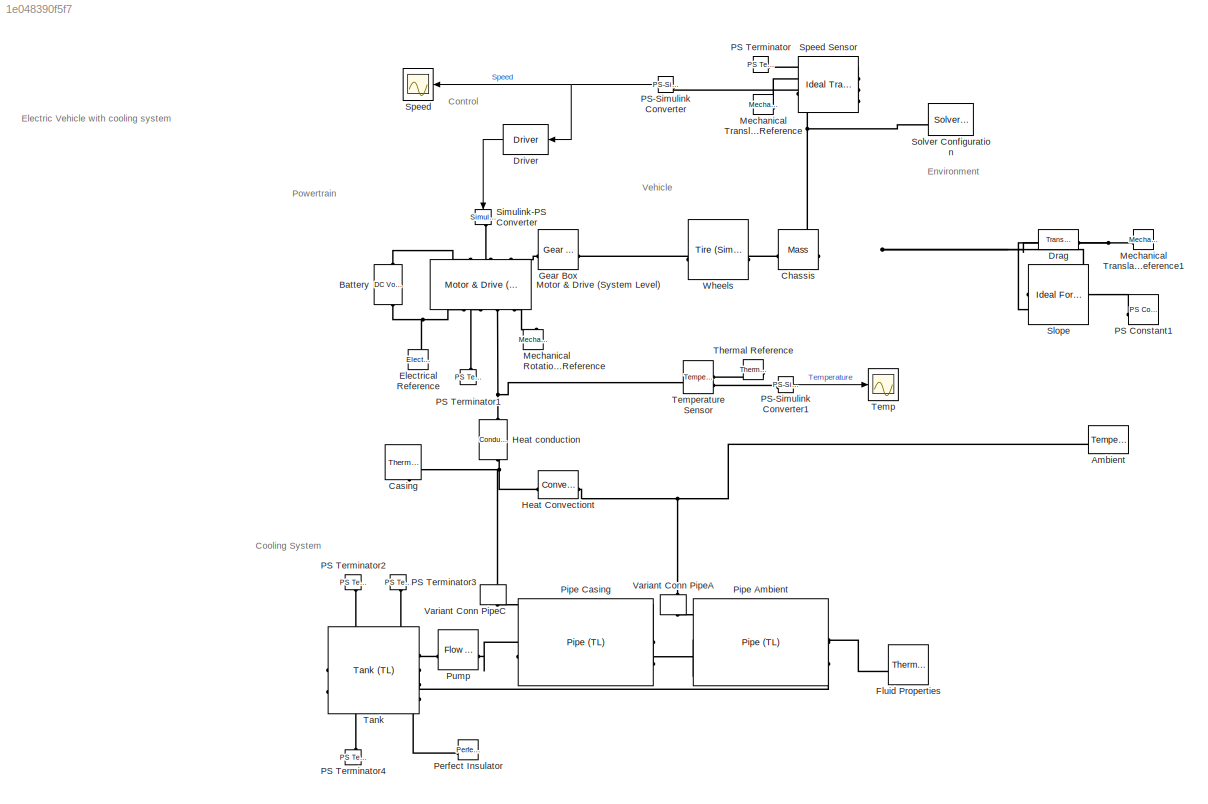
MODEL slx_1e048390f5f7
KIND model
CONFIG AbsTol = 1e-3
CONFIG EnableMultiTasking = off
CONFIG FixedStep = auto
CONFIG MaxStep = auto
CONFIG MinStep = auto
CONFIG RelTol = 1e-3
CONFIG SampleTimeConstraint = Unconstrained
CONFIG SolverName = VariableStepAuto
CONFIG StartTime = 0.0
CONFIG StopTime = 720
BLOCK [Reference] Ambient   REF=fl_lib/Thermal/Thermal Sources/Temperature Source
  NameLocation = top
  SourceBlock = fl_lib/Thermal/Thermal Sources/Temperature Source
  SourceType = Temperature Source
BLOCK [Reference] Battery  REF=fl_lib/Electrical/Electrical Sources/DC Voltage Source
  NameLocation = left
  SourceBlock = fl_lib/Electrical/Electrical Sources/DC Voltage Source
  SourceType = DC Voltage Source
BLOCK [Reference] Casing  REF=fl_lib/Thermal/Thermal Elements/Thermal Mass
  NameLocation = left
  SourceBlock = fl_lib/Thermal/Thermal Elements/Thermal Mass
  SourceType = Thermal Mass
BLOCK [Reference] Chassis  REF=fl_lib/Mechanical/Translational
Elements/Mass
  SourceBlock = fl_lib/Mechanical/Translational\nElements/Mass
  SourceType = Mass
BLOCK [Reference] Drag  REF=fl_lib/Mechanical/Translational
Elements/Translational
Friction
  SourceBlock = fl_lib/Mechanical/Translational\nElements/Translational\nFriction
  SourceType = Translational\nFriction
BLOCK [Reference] Driver  REF=driver_maneuver_library/Driver
  SourceBlock = driver_maneuver_library/Driver
  SourceType = Human Driver Model
BLOCK [Reference] Electrical Reference  REF=fl_lib/Electrical/Electrical Elements/Electrical Reference
  NameLocation = right
  SourceBlock = fl_lib/Electrical/Electrical Elements/Electrical Reference
  SourceType = Electrical Reference
BLOCK [Reference] Fluid Properties  REF=SimscapeFluids_lib/Thermal Liquid/Utilities/Thermal Liquid
Properties (TL)
  SourceBlock = SimscapeFluids_lib/Thermal Liquid/Utilities/Thermal Liquid\nProperties (TL)
  SourceType = Thermal Liquid\nProperties (TL)
BLOCK [Reference] Gear Box  REF=fl_lib/Mechanical/Mechanisms/Gear Box
  SourceBlock = fl_lib/Mechanical/Mechanisms/Gear Box
  SourceType = Gear Box
BLOCK [Reference] Heat Convectiont   REF=fl_lib/Thermal/Thermal Elements/Convective Heat
Transfer
  SourceBlock = fl_lib/Thermal/Thermal Elements/Convective Heat\nTransfer
  SourceType = Convective Heat\nTransfer
BLOCK [Reference] Heat conduction  REF=fl_lib/Thermal/Thermal Elements/Conductive Heat
Transfer
  NameLocation = left
  SourceBlock = fl_lib/Thermal/Thermal Elements/Conductive Heat\nTransfer
  SourceType = Conductive Heat\nTransfer
BLOCK [Reference] Mechanical Rotational Reference  REF=fl_lib/Mechanical/Rotational Elements/Mechanical
Rotational Reference
  NameLocation = right
  SourceBlock = fl_lib/Mechanical/Rotational Elements/Mechanical\nRotational Reference
  SourceType = Mechanical\nRotational Reference
BLOCK [Reference] Mechanical Translational Reference  REF=fl_lib/Mechanical/Translational
Elements/Mechanical
Translational
Reference
  SourceBlock = fl_lib/Mechanical/Translational\nElements/Mechanical\nTranslational\nReference
  SourceType = Mechanical\nTranslational\nReference
BLOCK [Reference] Mechanical Translational Reference1  REF=fl_lib/Mechanical/Translational
Elements/Mechanical
Translational
Reference
  SourceBlock = fl_lib/Mechanical/Translational\nElements/Mechanical\nTranslational\nReference
  SourceType = Mechanical\nTranslational\nReference
BLOCK [Reference] Motor & Drive (System Level)  REF=ee_lib/Electromechanical/Motor & Drive
(System Level)
  NameLocation = right
  SourceBlock = ee_lib/Electromechanical/Motor & Drive\n(System Level)
  SourceType = Motor & Drive\n(System Level)
BLOCK [Reference] PS Constant1  REF=fl_lib/Physical Signals/Sources/PS Constant
  SourceBlock = fl_lib/Physical Signals/Sources/PS Constant
  SourceType = PS Constant
BLOCK [Reference] PS Terminator  REF=fl_lib/Physical Signals/Sinks/PS Terminator
  SourceBlock = fl_lib/Physical Signals/Sinks/PS Terminator
  SourceType = PS Terminator
BLOCK [Reference] PS Terminator1  REF=fl_lib/Physical Signals/Sinks/PS Terminator
  NameLocation = right
  SourceBlock = fl_lib/Physical Signals/Sinks/PS Terminator
  SourceType = PS Terminator
BLOCK [Reference] PS Terminator2  REF=fl_lib/Physical Signals/Sinks/PS Terminator
  NameLocation = left
  SourceBlock = fl_lib/Physical Signals/Sinks/PS Terminator
  SourceType = PS Terminator
BLOCK [Reference] PS Terminator3  REF=fl_lib/Physical Signals/Sinks/PS Terminator
  NameLocation = left
  SourceBlock = fl_lib/Physical Signals/Sinks/PS Terminator
  SourceType = PS Terminator
BLOCK [Reference] PS Terminator4  REF=fl_lib/Physical Signals/Sinks/PS Terminator
  NameLocation = right
  SourceBlock = fl_lib/Physical Signals/Sinks/PS Terminator
  SourceType = PS Terminator
BLOCK [Reference] PS-Simulink Converter  REF=nesl_utility/PS-Simulink
Converter
  SourceBlock = nesl_utility/PS-Simulink\nConverter
  SourceType = PS-Simulink\nConverter
BLOCK [Reference] PS-Simulink Converter1  REF=nesl_utility/PS-Simulink
Converter
  SourceBlock = nesl_utility/PS-Simulink\nConverter
  SourceType = PS-Simulink\nConverter
BLOCK [Reference] Perfect Insulator  REF=fl_lib/Thermal/Thermal Elements/Perfect Insulator
  SourceBlock = fl_lib/Thermal/Thermal Elements/Perfect Insulator
  SourceType = Perfect Insulator
BLOCK [Reference] Pipe Ambient  REF=SimscapeFluids_lib/Thermal Liquid/Pipes & Fittings/Pipe (TL)
  SourceBlock = SimscapeFluids_lib/Thermal Liquid/Pipes & Fittings/Pipe (TL)
  SourceType = Pipe (TL)
BLOCK [Reference] Pipe Casing  REF=SimscapeFluids_lib/Thermal Liquid/Pipes & Fittings/Pipe (TL)
  SourceBlock = SimscapeFluids_lib/Thermal Liquid/Pipes & Fittings/Pipe (TL)
  SourceType = Pipe (TL)
BLOCK [Reference] Pump  REF=fl_lib/Thermal Liquid/Sources/Flow Rate Source
(TL)
  SourceBlock = fl_lib/Thermal Liquid/Sources/Flow Rate Source\n(TL)
  SourceType = Flow Rate Source\n(TL)
BLOCK [Reference] Simulink-PS Converter  REF=nesl_utility/Simulink-PS
Converter
  NameLocation = left
  SourceBlock = nesl_utility/Simulink-PS\nConverter
  SourceType = Simulink-PS\nConverter
BLOCK [Reference] Slope  REF=fl_lib/Mechanical/Mechanical Sources/Ideal Force Source
  SourceBlock = fl_lib/Mechanical/Mechanical Sources/Ideal Force Source
  SourceType = Ideal Force Source
BLOCK [Reference] Solver Configuration  REF=nesl_utility/Solver
Configuration
  SourceBlock = nesl_utility/Solver\nConfiguration
  SourceType = Solver\nConfiguration
BLOCK [Scope] Speed
  Floating = off
  NumInputPorts = 1
  ScopeSpecificationString = Simulink.scopes.TimeScopeBlockCfg('CurrentConfiguration', extmgr.ConfigurationSet(extmgr.Configuration('Core','General UI',true),extmgr.Configuration('Core','Source UI',true),extmgr.Configuration('Sources','WiredSimulink',true),extmgr.Configuration('Visuals','Time Domain',true,'SerializedDisplays',{struct('MinYLimReal','-18.48627','MaxYLimReal','166.35853','YLabelReal','','MinYLimMag','0.00000','M...<+1488ch>
BLOCK [Reference] Speed Sensor  REF=fl_lib/Mechanical/Mechanical Sensors/Ideal Translational
Motion Sensor
  SourceBlock = fl_lib/Mechanical/Mechanical Sensors/Ideal Translational\nMotion Sensor
  SourceType = Ideal Translational\nMotion Sensor
BLOCK [Reference] Tank  REF=SimscapeFluids_lib/Thermal Liquid/Tanks & Accumulators/Tank (TL)
  NameLocation = left
  SourceBlock = SimscapeFluids_lib/Thermal Liquid/Tanks & Accumulators/Tank (TL)
  SourceType = Tank (TL)
BLOCK [Scope] Temp
  Floating = off
  NumInputPorts = 1
  ScopeSpecificationString = Simulink.scopes.TimeScopeBlockCfg('CurrentConfiguration', extmgr.ConfigurationSet(extmgr.Configuration('Core','General UI',true),extmgr.Configuration('Core','Source UI',true),extmgr.Configuration('Sources','WiredSimulink',true,'DataLoggingVariableName','ScopeData1'),extmgr.Configuration('Visuals','Time Domain',true,'SerializedDisplays',{struct('MinYLimReal','32.33148','MaxYLimReal','189.97694','YL...<+1556ch>
BLOCK [Reference] Temperature Sensor  REF=fl_lib/Thermal/Thermal Sensors/Temperature Sensor
  SourceBlock = fl_lib/Thermal/Thermal Sensors/Temperature Sensor
  SourceType = Temperature Sensor
BLOCK [Reference] Thermal Reference  REF=fl_lib/Thermal/Thermal Elements/Thermal Reference
  NameLocation = top
  SourceBlock = fl_lib/Thermal/Thermal Elements/Thermal Reference
  SourceType = Thermal Reference
BLOCK [VariantPMConnector] Variant Conn PipeA
  ConnectorBlkType = Nonprimary
  ConnectorTag = Cool
  NameLocation = right
  VariantControls = __PRM__SERIALIZED__DATA__:Cooling_On==1
BLOCK [VariantPMConnector] Variant Conn PipeC
  ConnectorBlkType = Primary
  ConnectorTag = Cool
  NameLocation = right
  VariantControls = __PRM__SERIALIZED__DATA__:Cooling_On==1
BLOCK [Reference] Wheels   REF=sdl_lib/Tires & Vehicles/Tire (Simple)
  SourceBlock = sdl_lib/Tires & Vehicles/Tire (Simple)
  SourceType = Tire (Simple)
ANNOTATION (root): Electric Vehicle with cooling system
ANNOTATION (root): Control
ANNOTATION (root): Cooling System
ANNOTATION (root): Environment
ANNOTATION (root): Powertrain
ANNOTATION (root): Vehicle
LINE Driver:1 -> Simulink-PS Converter:1
LINE PS-Simulink Converter1:1 -> Temp:1
NET PS-Simulink Converter:1 -> Driver:1, Speed:1
PNET net1: Ambient :LConn1 -- Heat Convectiont :RConn1 -- Variant Conn PipeA:RConn1
PLINE Battery:LConn1 -- Motor & Drive (System Level):LConn1
PNET net2: Battery:RConn1 -- Electrical Reference:LConn1 -- Motor & Drive (System Level):RConn1
PNET net3: Casing:LConn1 -- Heat Convectiont :LConn1 -- Heat conduction:RConn1 -- Variant Conn PipeC:RConn1
PLINE Chassis:LConn1 -- Wheels :RConn1
PNET net4: Chassis:RConn1 -- Drag:LConn1 -- Slope:LConn1 -- Solver Configuration:RConn1 -- Speed Sensor:LConn1
PNET net5: Drag:RConn1 -- Mechanical Translational Reference1:LConn1 -- Slope:RConn2
PNET net6: Fluid Properties:RConn1 -- Pipe Ambient:RConn1 -- Tank:LConn2
PLINE Gear Box:LConn1 -- Motor & Drive (System Level):LConn3
PLINE Gear Box:RConn1 -- Wheels :LConn1
PNET net7: Heat conduction:LConn1 -- Motor & Drive (System Level):RConn3 -- Temperature Sensor:LConn1
PLINE Mechanical Rotational Reference:LConn1 -- Motor & Drive (System Level):RConn4
PLINE Mechanical Translational Reference:LConn1 -- Speed Sensor:RConn1
PLINE Motor & Drive (System Level):LConn2 -- Simulink-PS Converter:RConn1
PLINE Motor & Drive (System Level):RConn2 -- PS Terminator1:LConn1
PLINE PS Constant1:RConn1 -- Slope:RConn1
PLINE PS Terminator2:LConn1 -- Tank:LConn4
PLINE PS Terminator3:LConn1 -- Tank:LConn3
PLINE PS Terminator4:LConn1 -- Tank:RConn2
PLINE PS Terminator:LConn1 -- Speed Sensor:RConn3
PLINE PS-Simulink Converter1:LConn1 -- Temperature Sensor:RConn2
PLINE PS-Simulink Converter:LConn1 -- Speed Sensor:RConn2
PLINE Perfect Insulator:LConn1 -- Tank:RConn1
PLINE Pipe Ambient:LConn1 -- Pipe Casing:RConn1
PLINE Pipe Ambient:LConn2 -- Variant Conn PipeA:LConn1
PLINE Pipe Casing:LConn1 -- Pump:RConn1
PLINE Pipe Casing:LConn2 -- Variant Conn PipeC:LConn1
PLINE Pump:LConn1 -- Tank:LConn1
PLINE Temperature Sensor:RConn1 -- Thermal Reference:LConn1
note: NET lines group one-source signal fan-out (src -> all destinations, sorted); 1:1 wires keep LINE; PNET lines group multi-terminal physical nets as a canonical sorted terminal list (undirected conserving connections); 2-terminal nets keep the pairwise PLINE form
